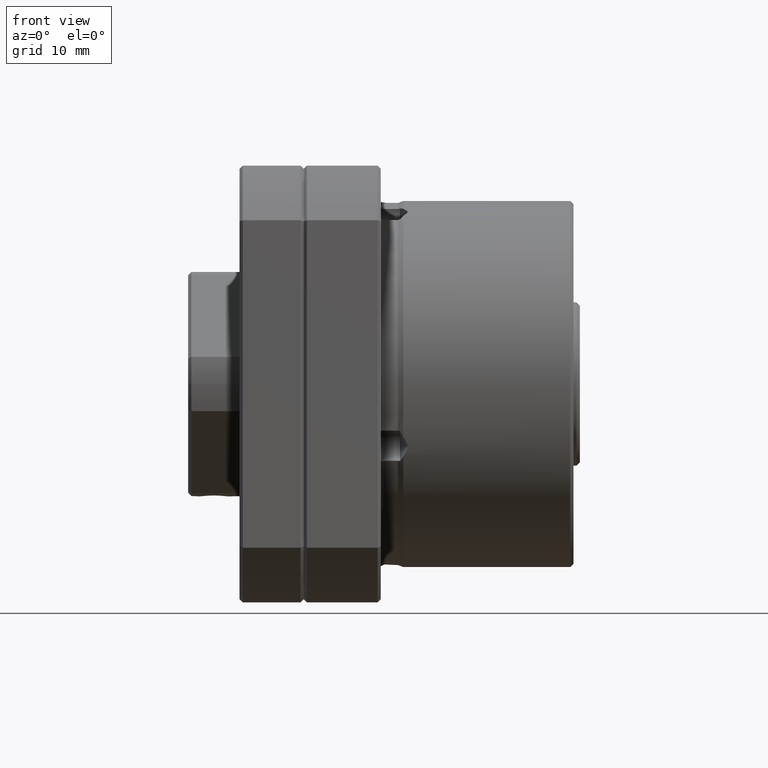
[diagram: clean part render]
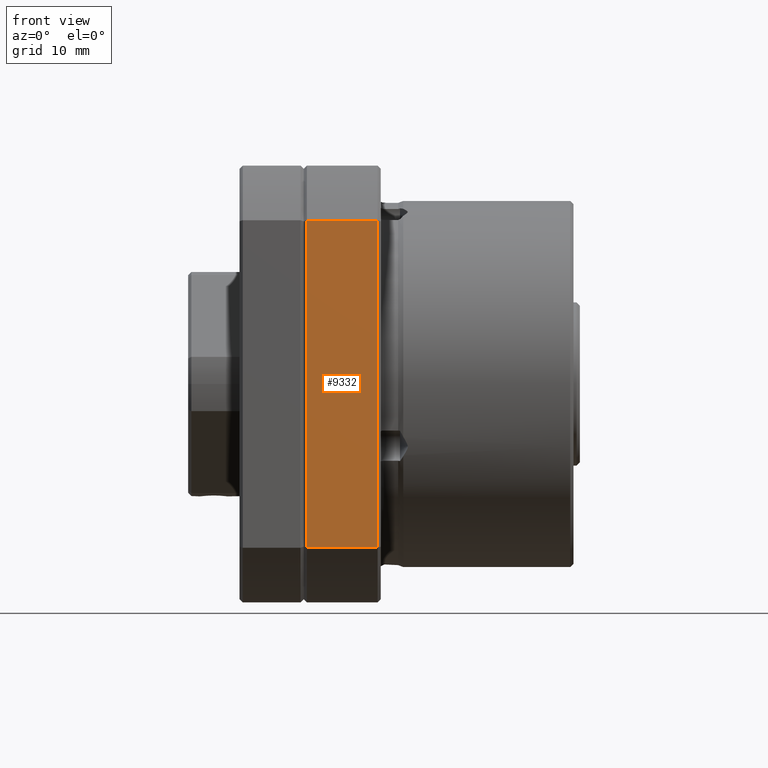
[diagram: same view with one face highlighted and labeled with its STEP entity id]
A machine part, front view. The second image highlights one B-rep face of the part: STEP entity #9332.
In plain terms, the highlighted planar face has unit normal (0, -1, 0).
Its self-contained STEP definition (entity closure, byte-faithful):
#2055 = DIRECTION ( 'NONE',  ( 0.0000000000000000000, 0.0000000000000000000, 1.000000000000000000 ) ) ;
#2056 = VECTOR ( 'NONE', #2055, 1000.000000000000000 ) ;
#2057 = CARTESIAN_POINT ( 'NONE',  ( 11.50000000000000000, -34.00000000000000000, 25.49999999999999600 ) ) ;
#2059 = LINE ( 'NONE', #2057, #2056 ) ;
#2060 = DIRECTION ( 'NONE',  ( 0.0000000000000000000, 0.0000000000000000000, -1.000000000000000000 ) ) ;
#2061 = VECTOR ( 'NONE', #2060, 1000.000000000000000 ) ;
#2062 = CARTESIAN_POINT ( 'NONE',  ( 0.5000000000000004400, -34.00000000000000000, -25.50000000000000400 ) ) ;
#2064 = LINE ( 'NONE', #2062, #2061 ) ;
#2733 = DIRECTION ( 'NONE',  ( 0.0000000000000000000, -0.0000000000000000000, -1.000000000000000000 ) ) ;
#2734 = DIRECTION ( 'NONE',  ( 0.0000000000000000000, -1.000000000000000000, 0.0000000000000000000 ) ) ;
#2735 = CARTESIAN_POINT ( 'NONE',  ( 41.99999999999999300, -34.00000000000000000, -34.00000000000005700 ) ) ;
#2736 = AXIS2_PLACEMENT_3D ( 'NONE', #2735, #2734, #2733 ) ;
#2737 = PLANE ( 'NONE',  #2736 ) ;
#2739 = FACE_OUTER_BOUND ( 'NONE', #9333, .T. ) ;
#8936 = EDGE_CURVE ( 'NONE', #8937, #8939, #14511, .T. ) ;
#8937 = VERTEX_POINT ( 'NONE', #14507 ) ;
#8939 = VERTEX_POINT ( 'NONE', #14506 ) ;
#9003 = VERTEX_POINT ( 'NONE', #15332 ) ;
#9006 = EDGE_CURVE ( 'NONE', #9008, #9003, #15331, .T. ) ;
#9008 = VERTEX_POINT ( 'NONE', #15327 ) ;
#9332 = ADVANCED_FACE ( 'NONE', ( #2739 ), #2737, .T. ) ;
#9333 = EDGE_LOOP ( 'NONE', ( #9334, #9335, #9337, #9338 ) ) ;
#9334 = ORIENTED_EDGE ( 'NONE', *, *, #9006, .T. ) ;
#9335 = ORIENTED_EDGE ( 'NONE', *, *, #9336, .T. ) ;
#9336 = EDGE_CURVE ( 'NONE', #9003, #8937, #2064, .T. ) ;
#9337 = ORIENTED_EDGE ( 'NONE', *, *, #8936, .T. ) ;
#9338 = ORIENTED_EDGE ( 'NONE', *, *, #9339, .T. ) ;
#9339 = EDGE_CURVE ( 'NONE', #8939, #9008, #2059, .T. ) ;
#14506 = CARTESIAN_POINT ( 'NONE',  ( 11.49999999999999600, -34.00000000000000000, -25.50000000000000400 ) ) ;
#14507 = CARTESIAN_POINT ( 'NONE',  ( 0.5000000000000004400, -34.00000000000000000, -25.50000000000000400 ) ) ;
#14508 = DIRECTION ( 'NONE',  ( 1.000000000000000000, 0.0000000000000000000, 0.0000000000000000000 ) ) ;
#14509 = VECTOR ( 'NONE', #14508, 1000.000000000000000 ) ;
#14510 = CARTESIAN_POINT ( 'NONE',  ( -94.46891865289678900, -34.00000000000000000, -25.50000000000000400 ) ) ;
#14511 = LINE ( 'NONE', #14510, #14509 ) ;
#15327 = CARTESIAN_POINT ( 'NONE',  ( 11.49999999999999600, -34.00000000000000000, 25.50000000000000400 ) ) ;
#15328 = DIRECTION ( 'NONE',  ( -1.000000000000000000, -0.0000000000000000000, -0.0000000000000000000 ) ) ;
#15329 = VECTOR ( 'NONE', #15328, 1000.000000000000000 ) ;
#15330 = CARTESIAN_POINT ( 'NONE',  ( -94.46891865289678900, -34.00000000000000000, 25.50000000000000400 ) ) ;
#15331 = LINE ( 'NONE', #15330, #15329 ) ;
#15332 = CARTESIAN_POINT ( 'NONE',  ( 0.5000000000000004400, -34.00000000000000000, 25.50000000000000400 ) ) ;